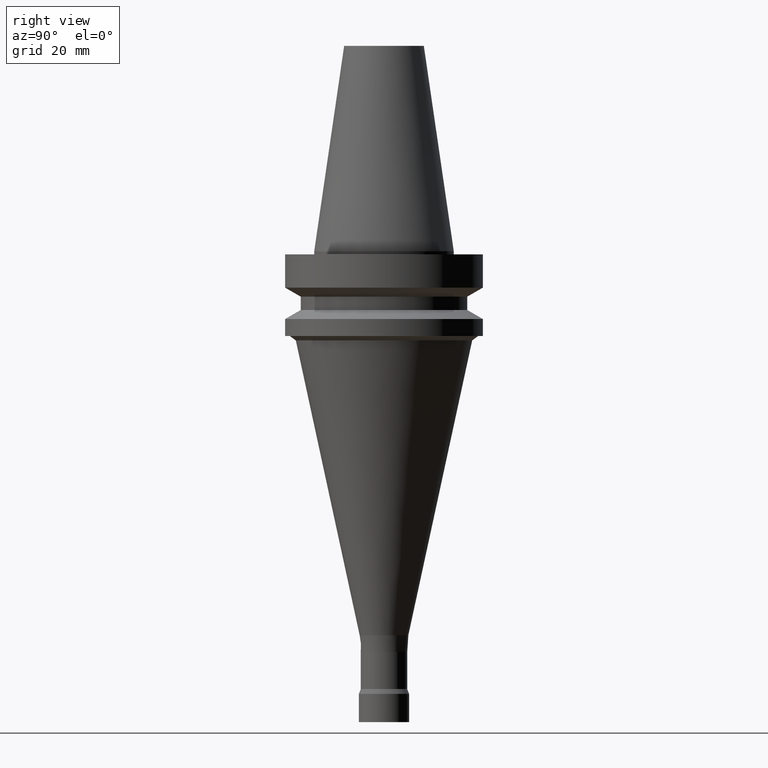
[diagram: clean part render]
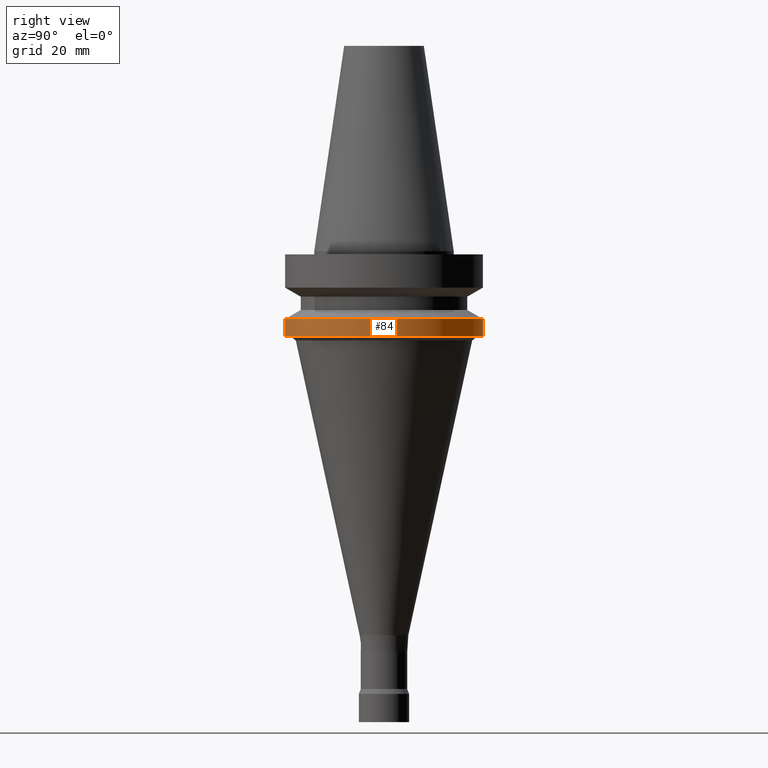
[diagram: same view with one face highlighted and labeled with its STEP entity id]
A machine part, right view. The second image highlights one B-rep face of the part: STEP entity #84.
In plain terms, the highlighted cylindrical surface (bore or boss wall) has radius 31.5 mm, axis along (-0, -0, 1).
Its self-contained STEP definition (entity closure, byte-faithful):
#84=ADVANCED_FACE('',(#118,#119),#120,.T.);
#118=FACE_BOUND('',#167,.T.);
#119=FACE_BOUND('',#168,.T.);
#120=CYLINDRICAL_SURFACE('',#169,31.5);
#167=EDGE_LOOP('',(#234));
#168=EDGE_LOOP('',(#235));
#169=AXIS2_PLACEMENT_3D('',#236,#237,#238);
#234=ORIENTED_EDGE('',*,*,#283,.F.);
#235=ORIENTED_EDGE('',*,*,#282,.T.);
#236=CARTESIAN_POINT('',(1.48794586096403E-015,2.97589172192807E-015,-24.3));
#237=DIRECTION('',(-6.12323399573677E-017,-1.22464679914735E-016,1.0));
#238=DIRECTION('',(-1.23259516440783E-032,1.0,1.22464679914735E-016));
#282=EDGE_CURVE('',#306,#306,#307,.T.);
#283=EDGE_CURVE('',#308,#308,#309,.T.);
#306=VERTEX_POINT('',#338);
#307=CIRCLE('',#339,31.5);
#308=VERTEX_POINT('',#340);
#309=CIRCLE('',#341,31.5);
#338=CARTESIAN_POINT('',(1.32261854307914E-015,31.5,-21.6));
#339=AXIS2_PLACEMENT_3D('',#378,#379,#380);
#340=CARTESIAN_POINT('',(1.65327317884893E-015,31.5,-27.0));
#341=AXIS2_PLACEMENT_3D('',#381,#382,#383);
#378=CARTESIAN_POINT('',(1.32261854307914E-015,2.64523708615828E-015,-21.6));
#379=DIRECTION('',(6.12323399573677E-017,1.22464679914735E-016,-1.0));
#380=DIRECTION('',(-1.23259516440783E-032,1.0,1.22464679914735E-016));
#381=CARTESIAN_POINT('',(1.65327317884893E-015,3.30654635769785E-015,-27.0));
#382=DIRECTION('',(6.12323399573677E-017,1.22464679914735E-016,-1.0));
#383=DIRECTION('',(-1.23259516440783E-032,1.0,1.22464679914735E-016));